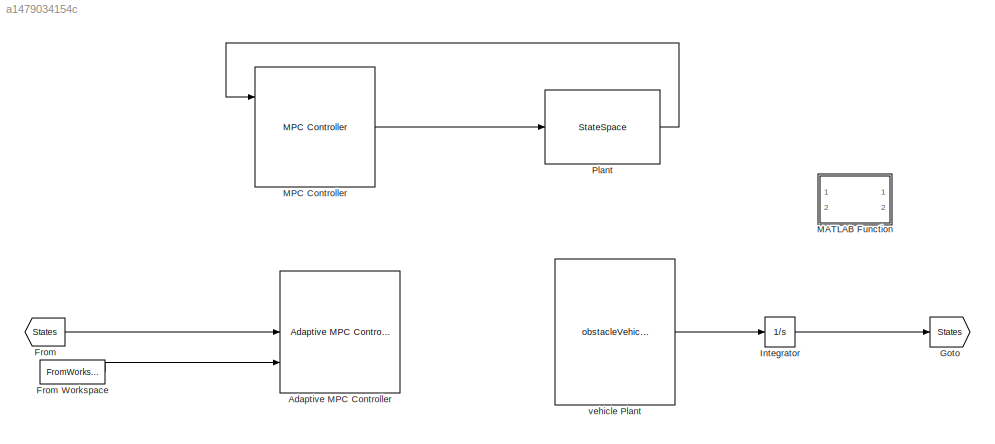
MODEL slx_a1479034154c
KIND model
CONFIG AbsTol = auto
CONFIG EnableMultiTasking = off
CONFIG FixedStep = auto
CONFIG MaxStep = auto
CONFIG MinStep = auto
CONFIG RelTol = 1e-3
CONFIG SampleTimeConstraint = Unconstrained
CONFIG Solver = VariableStepAuto
CONFIG SolverName = VariableStepAuto
CONFIG StartTime = 0.0
CONFIG StopTime = 10.0
BLOCK [Reference] Adaptive MPC Controller  REF=mpclib/Adaptive MPC Controller  (lib defined in mdl_ae329e0e0455)
  Ports = [3, 1]
  SCDEnableBlockLinearizationSpecification = on
  SourceBlock = mpclib/Adaptive MPC Controller
  SourceProductBaseCode = MP
  SourceType = Adaptive MPC
BLOCK [From] From
  GotoTag = States
BLOCK [FromWorkspace] From Workspace
  VariableName = poses
BLOCK [Goto] Goto
  GotoTag = States
BLOCK [Integrator] Integrator
  Ports = [1, 1]
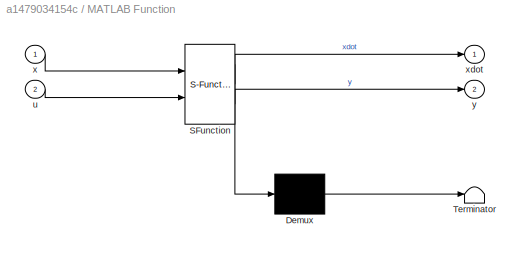
BLOCK [SubSystem] MATLAB Function
  ErrorFcn = Stateflow.Translate.translate
  PermitHierarchicalResolution = ExplicitOnly
  Ports = [2, 2]
  RequestExecContextInheritance = off
  SFBlockType = MATLAB Function
  TreatAsAtomicUnit = on
BLOCK [Demux] MATLAB Function/ Demux 
  Outputs = 1
  Ports = [1, 1]
BLOCK [S-Function] MATLAB Function/ SFunction 
  EnableBusSupport = off
  FunctionName = sf_sfun
  PortCounts = [2 3]
  Ports = [2, 3]
  SFcnIsStateOwnerBlock = off
  SFunctionDeploymentMode = off
  Tag = Stateflow S-Function 2
BLOCK [Terminator] MATLAB Function/ Terminator 
BLOCK [Inport] MATLAB Function/u
  Port = 2
BLOCK [Inport] MATLAB Function/x
BLOCK [Outport] MATLAB Function/xdot
BLOCK [Outport] MATLAB Function/y
  Port = 2
BLOCK [Reference] MPC Controller  REF=mpclib/MPC Controller  (lib defined in mdl_ae329e0e0455)
  Ports = [3, 1]
  SCDEnableBlockLinearizationSpecification = on
  SourceBlock = mpclib/MPC Controller
  SourceProductBaseCode = MP
  SourceType = MPC
BLOCK [StateSpace] Plant
  A = [ 0, 0, -x(4)*sin(x(3)), cos(x(3));\n      0, 0,  x(4)*cos(x(3)), sin(x(3));\n      0, 0, 0,             tan(x(3))/carLength;\n      0, 0, 0,             0]
  B = [0  , 0;\n     0  , 0;\n     0  , (x(4)*(tan(x(3))^2 + 1))/carLength;\n     0.5, 0];
  C = [1 0 0 0; 0 1 0 0; 0 0 1 0; 0 0 0 1]
  ContinuousStateAttributes = 'xPos', 'yPos', 'theta', 'v'
  D = 0
  InitialCondition = 0
  Ports = [1, 1]
BLOCK [Fcn] vehicle Plant
  Expr = obstacleVehicleModelCT
LINE From Workspace:1 -> Adaptive MPC Controller:3
LINE From:1 -> Adaptive MPC Controller:2
LINE Integrator:1 -> Goto:1
LINE MPC Controller:1 -> Plant:1
LINE Plant:1 -> MPC Controller:1
LINE vehicle Plant:1 -> Integrator:1
CHART MATLAB Function states=1 transitions=1
  STATE_LABEL 'eML_blk_kernel()'
  STATE_LABEL 'SCRIPT:\nfunction [xdot,y] = obstacleVehicleModelCT(x,u)\n% The ego car has rectangular shaper with a length of 5 meters and width of\n% 2 meters. The model has four states:\n%\n% * |xPos| - Global horizontal position of the car center\n% * |yPos| - Global vertical position of the car center\n% * |theta| - Heading angle of the car (0 when facing east, counterclockwise positive)\n% * |V| - Speed of the car...<+583ch>'
CHART  states=0 transitions=0
